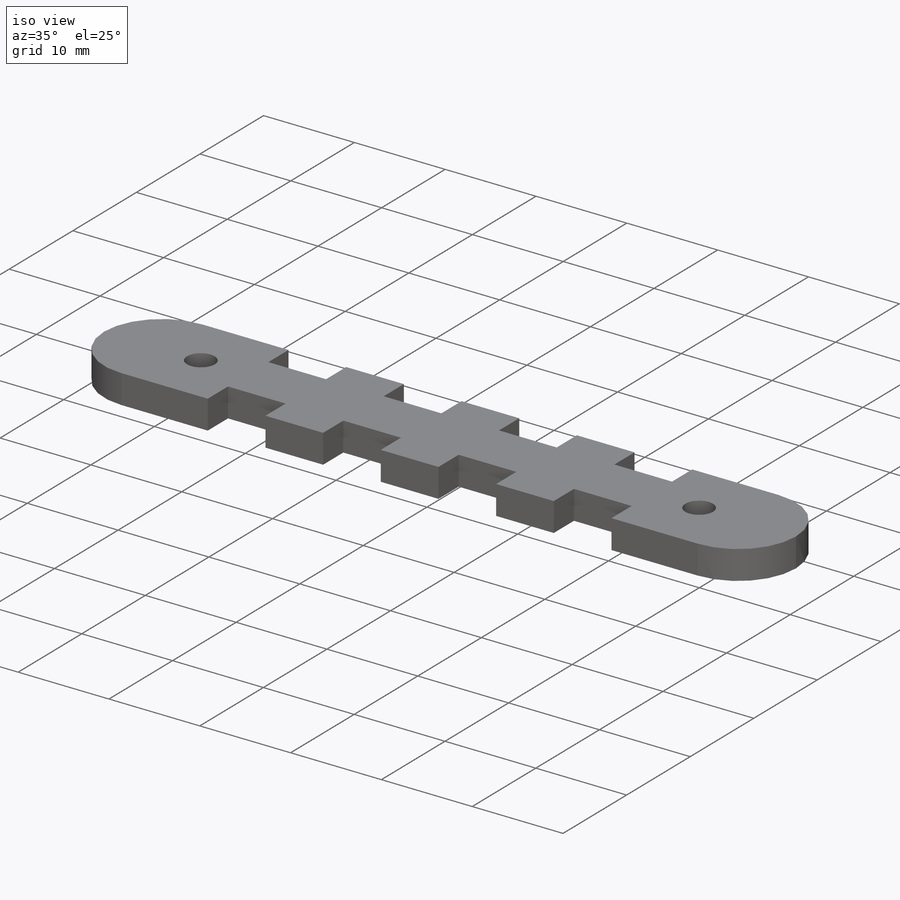
[diagram: iso view]
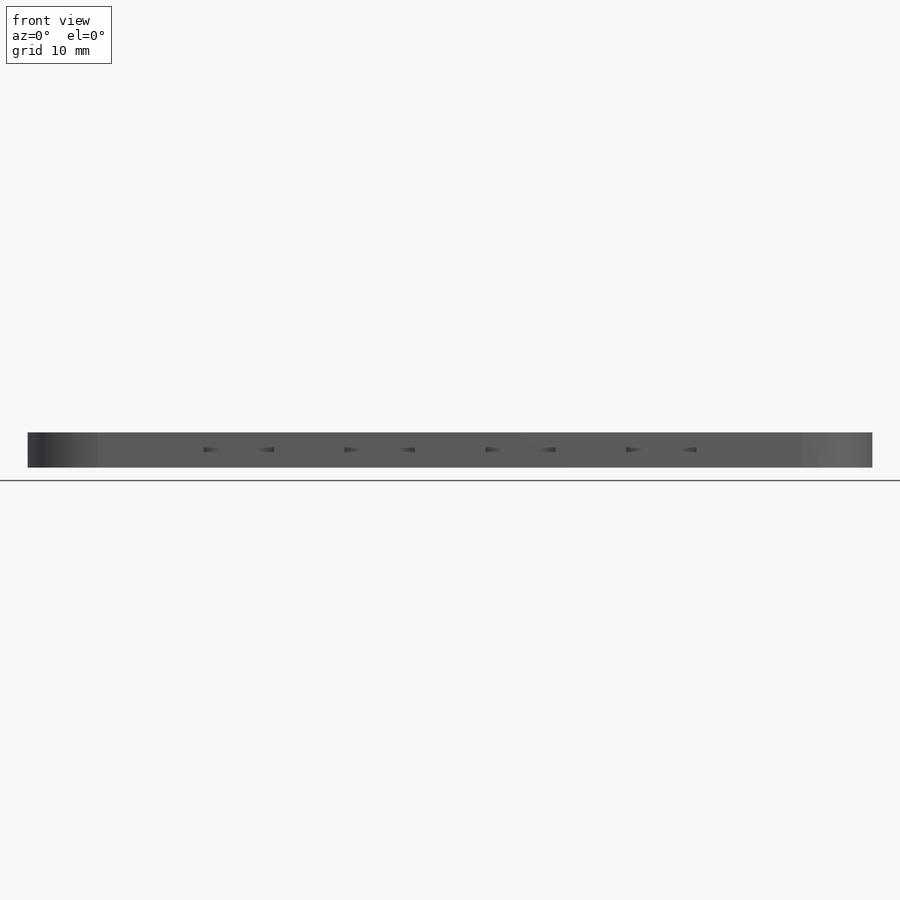
[diagram: front view]
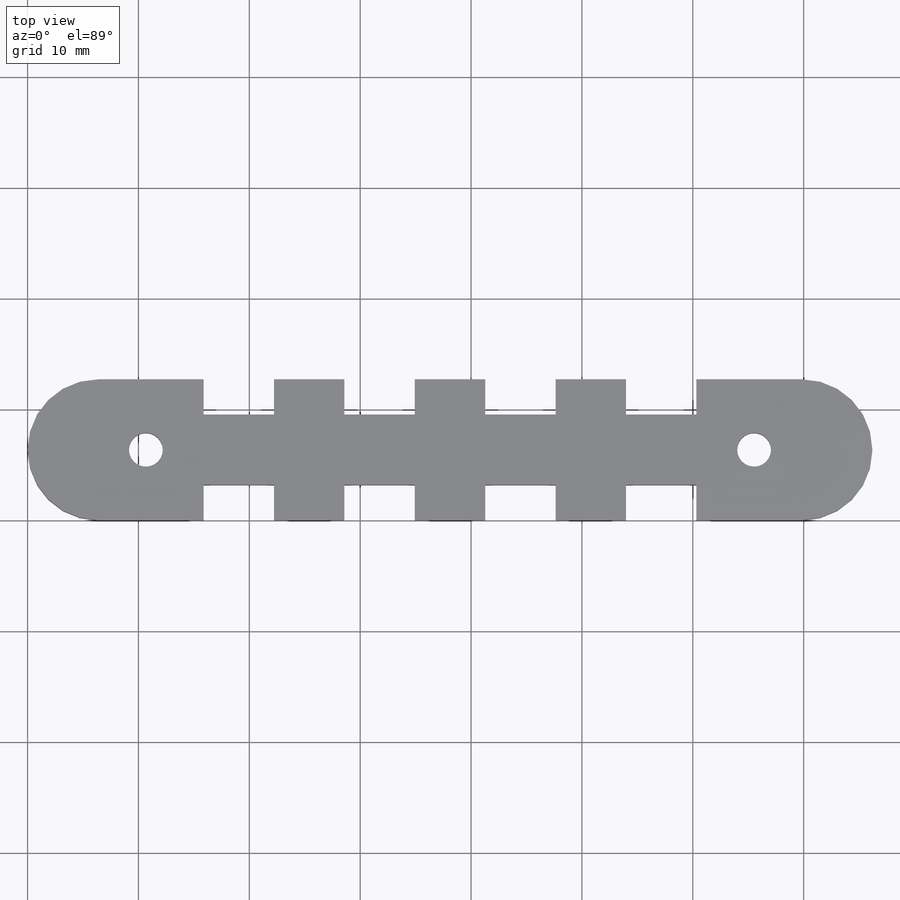
[diagram: top view]
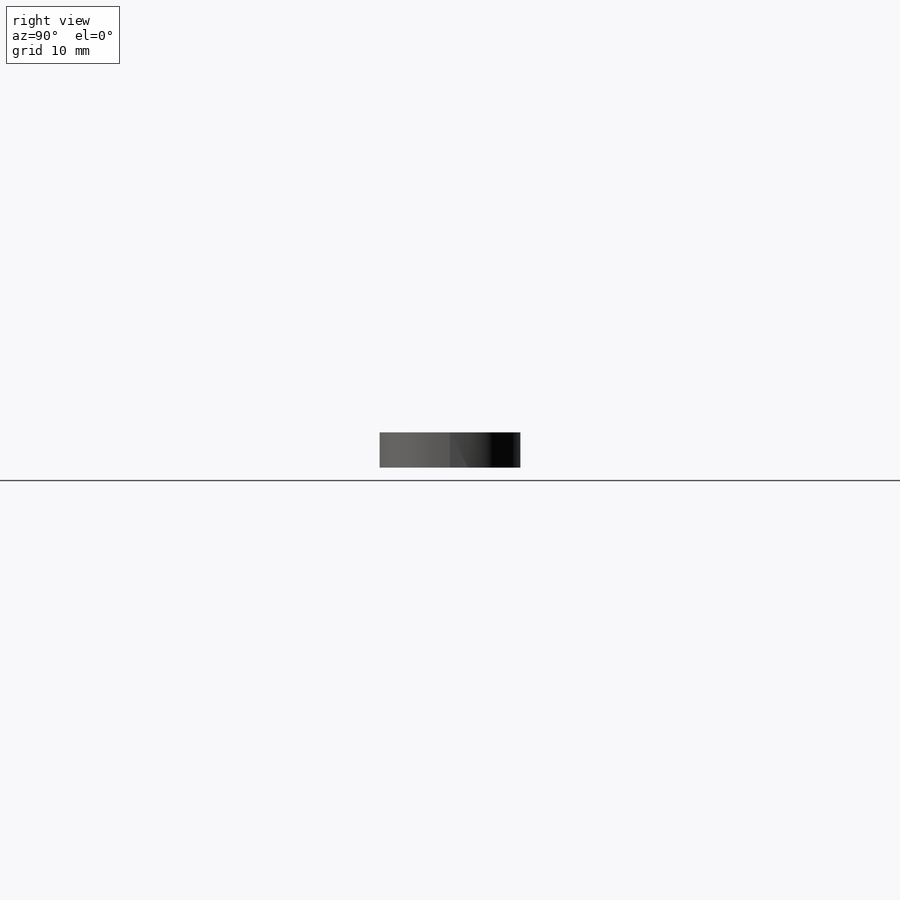
[diagram: right view]
SOLIDWORKS PART (.sldprt)
format: sldprt  version: not decoded by parser v0  size: 209,920 bytes
history: native  units: mm
features: sketch x2, material x1, extrude x1, fillet x1, cut_extrude x1 (+12 scaffold rows collapsed)
feature tree (18):
  scaffold x12  (default folders/planes/origin — collapsed)
  material  "Material <not specified>"
  sketch  "Sketch2"  dims[D1=76.2mm D2=12.7mm]
  extrude  "Boss-Extrude1"  Depth=3.175mm
  fillet  "Fillet1"  Radius=6.35mm
  sketch  "Sketch3"  dims[c1.D1=1.5875mm c1.D2=1.5875mm c1.D9=3.048mm c2.D1=0.0mm c2.D2=27.432mm c2.D3=6.35mm c2.D4=6.35mm c2.D5=6.35mm c2.D6=3.175mm c2.D7=3.175mm c2.D8=3.175mm]
  cut_extrude  "Cut-Extrude1"  Depth=3.175mm
decode coverage: 5 of 5 modeling features carry decoded parameters
note: suppression state not decoded; provenance and decode notes live in map.json
